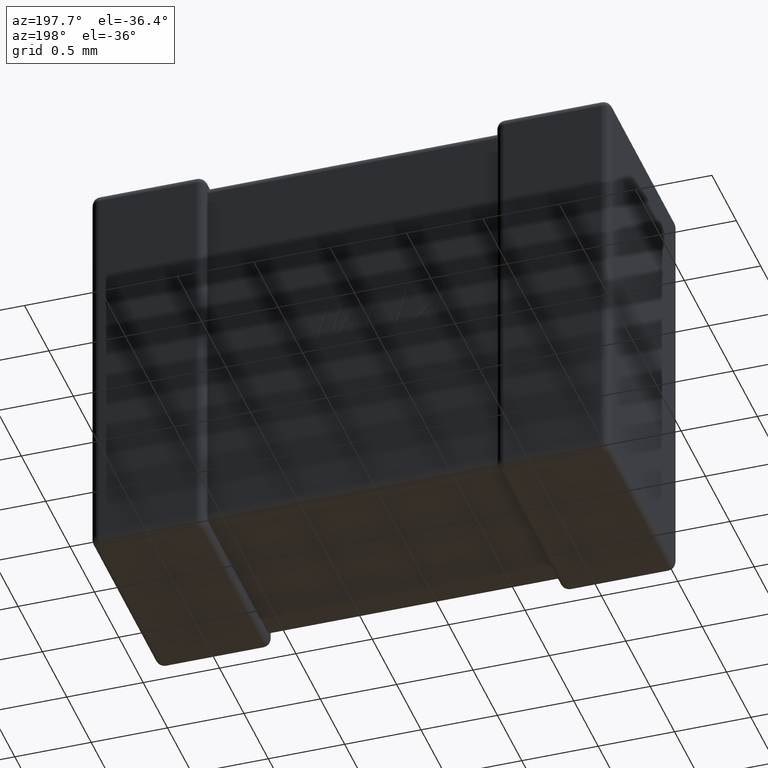
[diagram: clean part render]
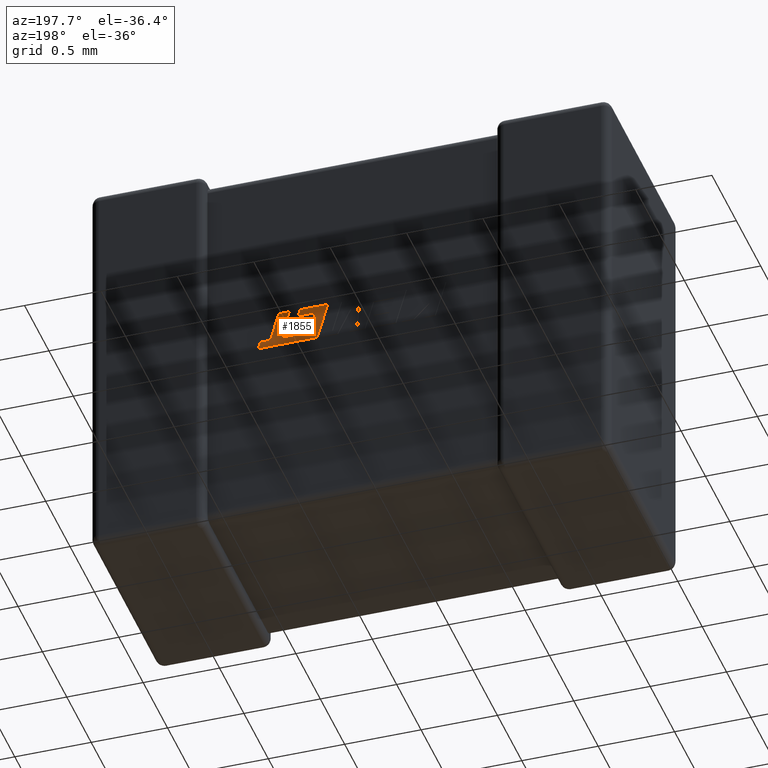
[diagram: same view with one face highlighted and labeled with its STEP entity id]
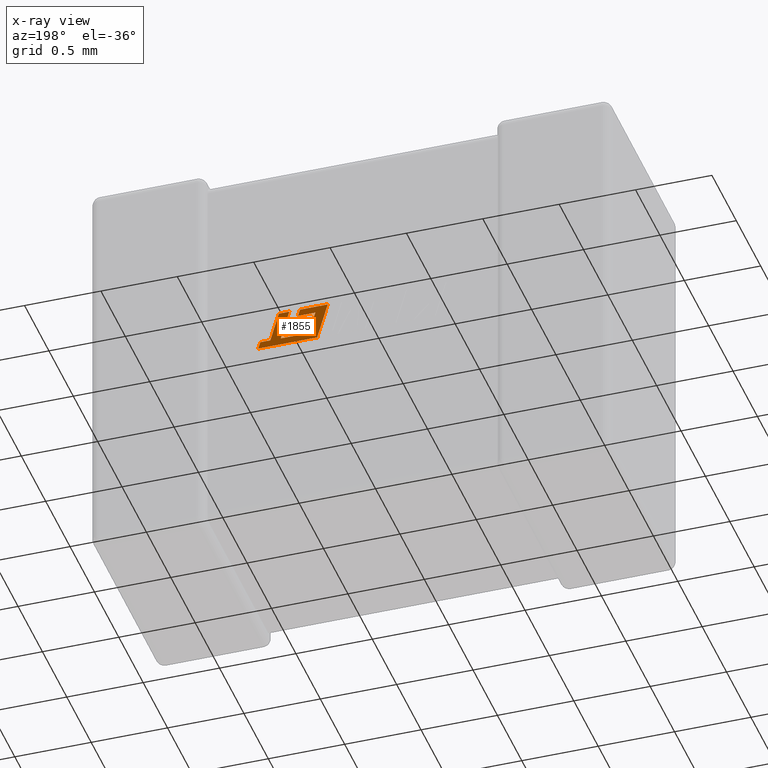
[diagram: x-ray of the same camera — body ghosted, the highlighted face saturated]
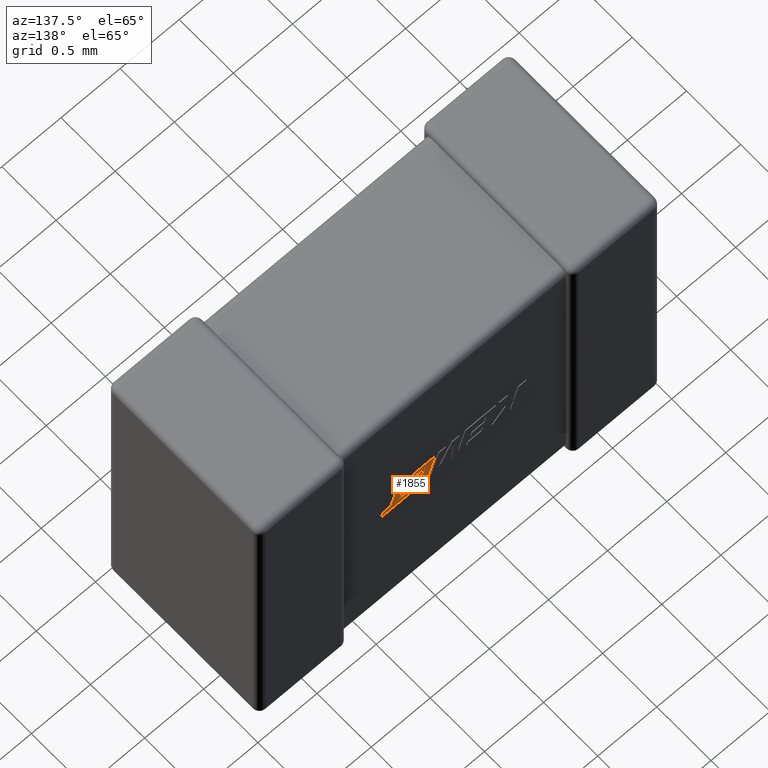
[diagram: same view with one face highlighted and labeled with its STEP entity id]
A machine part, auxiliary view. The second image highlights one B-rep face of the part: STEP entity #1855.
The next image is the same camera in x-ray: the body ghosted, the highlighted face saturated — about 0% of this face is hidden behind the body in this view.
A second angle (auxiliary view) of the same face is appended — the face is thin or edge-on in the first view.
In plain terms, the highlighted planar face has unit normal (0, 1, 0).
Its self-contained STEP definition (entity closure, byte-faithful):
#37 = EDGE_CURVE ( 'NONE', #601, #266, #1840, .T. ) ;
#83 = DIRECTION ( 'NONE',  ( 0.9999960426590095400, 0.0000000000000000000, 0.002813301676023789700 ) ) ;
#84 = ORIENTED_EDGE ( 'NONE', *, *, #4630, .T. ) ;
#96 = ORIENTED_EDGE ( 'NONE', *, *, #424, .T. ) ;
#107 = CARTESIAN_POINT ( 'NONE',  ( 2.316578330123420400, 1.348840000000000300, -1.393777468605939400 ) ) ;
#124 = EDGE_CURVE ( 'NONE', #2843, #3145, #2231, .T. ) ;
#159 = CARTESIAN_POINT ( 'NONE',  ( 1.972396443264239600, 1.348840000000000300, -1.303218073765277400 ) ) ;
#160 = VECTOR ( 'NONE', #2863, 1000.000000000000100 ) ;
#257 = LINE ( 'NONE', #1136, #3970 ) ;
#266 = VERTEX_POINT ( 'NONE', #327 ) ;
#311 = LINE ( 'NONE', #3222, #3905 ) ;
#315 = CARTESIAN_POINT ( 'NONE',  ( 2.055897437653676300, 1.348840000000000300, -1.198954495959714500 ) ) ;
#317 = VECTOR ( 'NONE', #2806, 1000.000000000000000 ) ;
#327 = CARTESIAN_POINT ( 'NONE',  ( 2.095678488951810500, 1.348840000000000300, -1.347660829838406700 ) ) ;
#348 = CARTESIAN_POINT ( 'NONE',  ( 2.113005515929134300, 1.348840000000000300, -1.153170000000000000 ) ) ;
#365 = VERTEX_POINT ( 'NONE', #657 ) ;
#381 = ORIENTED_EDGE ( 'NONE', *, *, #124, .T. ) ;
#424 = EDGE_CURVE ( 'NONE', #643, #2222, #311, .T. ) ;
#431 = LINE ( 'NONE', #315, #2118 ) ;
#551 = CARTESIAN_POINT ( 'NONE',  ( 1.861119823717066300, 1.348840000000000300, -1.153170000000000000 ) ) ;
#601 = VERTEX_POINT ( 'NONE', #2621 ) ;
#643 = VERTEX_POINT ( 'NONE', #551 ) ;
#657 = CARTESIAN_POINT ( 'NONE',  ( 2.316578330123420400, 1.348840000000000300, -1.393777468605939400 ) ) ;
#691 = CARTESIAN_POINT ( 'NONE',  ( 1.959706246931077500, 1.348840000000000300, -1.258746054008583100 ) ) ;
#697 = CARTESIAN_POINT ( 'NONE',  ( 1.930326972112929000, 1.348840000000000300, -1.393777468605939400 ) ) ;
#712 = VECTOR ( 'NONE', #4535, 1000.000000000000100 ) ;
#758 = CARTESIAN_POINT ( 'NONE',  ( 2.062947058999644600, 1.348840000000000300, -1.258746054008583100 ) ) ;
#767 = FACE_OUTER_BOUND ( 'NONE', #2659, .T. ) ;
#778 = CARTESIAN_POINT ( 'NONE',  ( 2.168825992132259000, 1.348840000000000300, -1.347320639518147400 ) ) ;
#842 = LINE ( 'NONE', #691, #317 ) ;
#852 = ORIENTED_EDGE ( 'NONE', *, *, #2709, .T. ) ;
#905 = ORIENTED_EDGE ( 'NONE', *, *, #3706, .T. ) ;
#972 = LINE ( 'NONE', #778, #160 ) ;
#987 = EDGE_CURVE ( 'NONE', #1230, #4004, #842, .T. ) ;
#1041 = VECTOR ( 'NONE', #1461, 1000.000000000000200 ) ;
#1051 = DIRECTION ( 'NONE',  ( 0.0000000000000000000, 0.0000000000000000000, 1.000000000000000000 ) ) ;
#1072 = DIRECTION ( 'NONE',  ( 0.0000000000000000000, 1.000000000000000000, 0.0000000000000000000 ) ) ;
#1097 = CARTESIAN_POINT ( 'NONE',  ( -0.0002255481140239681100, 1.348839999999999800, -0.3440333437732227600 ) ) ;
#1104 = VERTEX_POINT ( 'NONE', #3588 ) ;
#1136 = CARTESIAN_POINT ( 'NONE',  ( 1.942636740367878100, 1.348840000000000300, -1.198954495959714500 ) ) ;
#1215 = ORIENTED_EDGE ( 'NONE', *, *, #4049, .T. ) ;
#1221 = EDGE_CURVE ( 'NONE', #4499, #3796, #2885, .T. ) ;
#1230 = VERTEX_POINT ( 'NONE', #2697 ) ;
#1274 = VECTOR ( 'NONE', #4014, 1000.000000000000100 ) ;
#1288 = VECTOR ( 'NONE', #1969, 1000.000000000000100 ) ;
#1301 = VERTEX_POINT ( 'NONE', #1974 ) ;
#1312 = DIRECTION ( 'NONE',  ( 0.2746918797667152700, 0.0000000000000000000, -0.9615323037684320200 ) ) ;
#1398 = DIRECTION ( 'NONE',  ( -0.2764273280489743500, 0.0000000000000000000, 0.9610348236706641700 ) ) ;
#1409 = LINE ( 'NONE', #4134, #1288 ) ;
#1425 = CARTESIAN_POINT ( 'NONE',  ( 2.095678488951810500, 1.348840000000000300, -1.347660829838406700 ) ) ;
#1461 = DIRECTION ( 'NONE',  ( 0.9999891854650020400, 0.0000000000000000000, 0.004650693823683970900 ) ) ;
#1473 = DIRECTION ( 'NONE',  ( 0.2762437428917282600, 0.0000000000000000000, -0.9610876102172832800 ) ) ;
#1556 = EDGE_CURVE ( 'NONE', #3145, #2433, #3956, .T. ) ;
#1603 = CARTESIAN_POINT ( 'NONE',  ( 2.042905825380899800, 1.348840000000000300, -1.153170000000000000 ) ) ;
#1659 = ORIENTED_EDGE ( 'NONE', *, *, #4450, .T. ) ;
#1671 = LINE ( 'NONE', #3318, #3005 ) ;
#1706 = VECTOR ( 'NONE', #4460, 1000.000000000000000 ) ;
#1788 = EDGE_CURVE ( 'NONE', #2433, #3620, #2322, .T. ) ;
#1806 = DIRECTION ( 'NONE',  ( 1.000000000000000000, 0.0000000000000000000, 0.0000000000000000000 ) ) ;
#1815 = DIRECTION ( 'NONE',  ( 0.2745159998572620500, 0.0000000000000000000, -0.9615825319869156800 ) ) ;
#1827 = ORIENTED_EDGE ( 'NONE', *, *, #1556, .T. ) ;
#1834 = LINE ( 'NONE', #697, #3967 ) ;
#1840 = LINE ( 'NONE', #1864, #2405 ) ;
#1847 = ORIENTED_EDGE ( 'NONE', *, *, #3402, .T. ) ;
#1855 = ADVANCED_FACE ( 'NONE', ( #767 ), #3190, .T. ) ;
#1864 = CARTESIAN_POINT ( 'NONE',  ( 1.985418782404688100, 1.348840000000000300, -1.347971024883181500 ) ) ;
#1872 = EDGE_CURVE ( 'NONE', #266, #1301, #3044, .T. ) ;
#1969 = DIRECTION ( 'NONE',  ( 0.2762033010289140500, 0.0000000000000000000, -0.9610992334305189500 ) ) ;
#1974 = CARTESIAN_POINT ( 'NONE',  ( 2.168825992132259000, 1.348840000000000300, -1.347320639518147400 ) ) ;
#2059 = ORIENTED_EDGE ( 'NONE', *, *, #3657, .T. ) ;
#2118 = VECTOR ( 'NONE', #3229, 1000.000000000000000 ) ;
#2175 = EDGE_CURVE ( 'NONE', #365, #3018, #3325, .T. ) ;
#2222 = VERTEX_POINT ( 'NONE', #1603 ) ;
#2226 = LINE ( 'NONE', #2633, #1274 ) ;
#2231 = LINE ( 'NONE', #3722, #4157 ) ;
#2322 = LINE ( 'NONE', #2739, #712 ) ;
#2333 = CARTESIAN_POINT ( 'NONE',  ( 2.237349833325962500, 1.348840000000000300, -1.347320639517550800 ) ) ;
#2372 = CARTESIAN_POINT ( 'NONE',  ( 2.075651887174539700, 1.348840000000000300, -1.303218073765277400 ) ) ;
#2405 = VECTOR ( 'NONE', #83, 1000.000000000000100 ) ;
#2433 = VERTEX_POINT ( 'NONE', #2333 ) ;
#2474 = CARTESIAN_POINT ( 'NONE',  ( 1.942636740367878100, 1.348840000000000300, -1.198954495959714500 ) ) ;
#2621 = CARTESIAN_POINT ( 'NONE',  ( 1.985418782404688100, 1.348840000000000300, -1.347971024883181500 ) ) ;
#2633 = CARTESIAN_POINT ( 'NONE',  ( 1.972396443264239600, 1.348840000000000300, -1.303218073765277400 ) ) ;
#2659 = EDGE_LOOP ( 'NONE', ( #4221, #2913, #852, #381, #1827, #4422, #1215, #3587, #1659, #96, #905, #84, #3990, #4184, #1847, #4648, #2059 ) ) ;
#2697 = CARTESIAN_POINT ( 'NONE',  ( 1.959706246931077500, 1.348840000000000300, -1.258746054008583100 ) ) ;
#2709 = EDGE_CURVE ( 'NONE', #1301, #2843, #972, .T. ) ;
#2739 = CARTESIAN_POINT ( 'NONE',  ( 2.237349833325962500, 1.348840000000000300, -1.347320639517550800 ) ) ;
#2782 = LINE ( 'NONE', #2946, #3168 ) ;
#2806 = DIRECTION ( 'NONE',  ( 1.000000000000000000, 0.0000000000000000000, 0.0000000000000000000 ) ) ;
#2833 = CARTESIAN_POINT ( 'NONE',  ( 2.075651887174539700, 1.348840000000000300, -1.303218073765277400 ) ) ;
#2843 = VERTEX_POINT ( 'NONE', #348 ) ;
#2863 = DIRECTION ( 'NONE',  ( -0.2763173343569956300, 0.0000000000000000000, 0.9610664548998910700 ) ) ;
#2879 = VECTOR ( 'NONE', #1473, 1000.000000000000000 ) ;
#2885 = LINE ( 'NONE', #2372, #3225 ) ;
#2913 = ORIENTED_EDGE ( 'NONE', *, *, #1872, .T. ) ;
#2946 = CARTESIAN_POINT ( 'NONE',  ( 2.042905825380899800, 1.348840000000000300, -1.153170000000000000 ) ) ;
#3005 = VECTOR ( 'NONE', #1312, 1000.000000000000200 ) ;
#3018 = VERTEX_POINT ( 'NONE', #4496 ) ;
#3023 = DIRECTION ( 'NONE',  ( 1.000000000000000000, 0.0000000000000000000, 0.0000000000000000000 ) ) ;
#3044 = LINE ( 'NONE', #1425, #1041 ) ;
#3145 = VERTEX_POINT ( 'NONE', #4538 ) ;
#3168 = VECTOR ( 'NONE', #3392, 1000.000000000000200 ) ;
#3190 = PLANE ( 'NONE',  #4466 ) ;
#3222 = CARTESIAN_POINT ( 'NONE',  ( 1.861119823717066300, 1.348840000000000300, -1.153170000000000000 ) ) ;
#3225 = VECTOR ( 'NONE', #4113, 1000.000000000000000 ) ;
#3229 = DIRECTION ( 'NONE',  ( -1.000000000000000000, 0.0000000000000000000, 0.0000000000000000000 ) ) ;
#3318 = CARTESIAN_POINT ( 'NONE',  ( 2.062947058999644600, 1.348840000000000300, -1.258746054008583100 ) ) ;
#3325 = LINE ( 'NONE', #107, #1706 ) ;
#3392 = DIRECTION ( 'NONE',  ( 0.2729786930695100000, 0.0000000000000000000, -0.9620200793798756600 ) ) ;
#3402 = EDGE_CURVE ( 'NONE', #4004, #4499, #1671, .T. ) ;
#3587 = ORIENTED_EDGE ( 'NONE', *, *, #2175, .T. ) ;
#3588 = CARTESIAN_POINT ( 'NONE',  ( 2.055897437653676300, 1.348840000000000300, -1.198954495959714500 ) ) ;
#3593 = EDGE_CURVE ( 'NONE', #4479, #1230, #257, .T. ) ;
#3596 = CARTESIAN_POINT ( 'NONE',  ( 2.181545452148865300, 1.348840000000000300, -1.153170000000000000 ) ) ;
#3601 = CARTESIAN_POINT ( 'NONE',  ( 2.303225937787553700, 1.348840000000000300, -1.347315409714319000 ) ) ;
#3620 = VERTEX_POINT ( 'NONE', #3601 ) ;
#3657 = EDGE_CURVE ( 'NONE', #3796, #601, #2226, .T. ) ;
#3706 = EDGE_CURVE ( 'NONE', #2222, #1104, #2782, .T. ) ;
#3722 = CARTESIAN_POINT ( 'NONE',  ( 2.113005515929134300, 1.348840000000000300, -1.153170000000000000 ) ) ;
#3796 = VERTEX_POINT ( 'NONE', #159 ) ;
#3905 = VECTOR ( 'NONE', #1806, 1000.000000000000000 ) ;
#3956 = LINE ( 'NONE', #3596, #2879 ) ;
#3967 = VECTOR ( 'NONE', #1398, 1000.000000000000100 ) ;
#3970 = VECTOR ( 'NONE', #1815, 1000.000000000000100 ) ;
#3990 = ORIENTED_EDGE ( 'NONE', *, *, #3593, .T. ) ;
#4004 = VERTEX_POINT ( 'NONE', #758 ) ;
#4014 = DIRECTION ( 'NONE',  ( 0.2793947940814949200, 0.0000000000000000000, -0.9601763114346025800 ) ) ;
#4049 = EDGE_CURVE ( 'NONE', #3620, #365, #1409, .T. ) ;
#4113 = DIRECTION ( 'NONE',  ( -1.000000000000000000, 0.0000000000000000000, 0.0000000000000000000 ) ) ;
#4134 = CARTESIAN_POINT ( 'NONE',  ( 2.303225937787553700, 1.348840000000000300, -1.347315409714319000 ) ) ;
#4157 = VECTOR ( 'NONE', #3023, 1000.000000000000000 ) ;
#4184 = ORIENTED_EDGE ( 'NONE', *, *, #987, .T. ) ;
#4221 = ORIENTED_EDGE ( 'NONE', *, *, #37, .T. ) ;
#4422 = ORIENTED_EDGE ( 'NONE', *, *, #1788, .T. ) ;
#4450 = EDGE_CURVE ( 'NONE', #3018, #643, #1834, .T. ) ;
#4460 = DIRECTION ( 'NONE',  ( -1.000000000000000000, 0.0000000000000000000, 0.0000000000000000000 ) ) ;
#4466 = AXIS2_PLACEMENT_3D ( 'NONE', #1097, #1072, #1051 ) ;
#4479 = VERTEX_POINT ( 'NONE', #2474 ) ;
#4496 = CARTESIAN_POINT ( 'NONE',  ( 1.930326972112929000, 1.348840000000000300, -1.393777468605939400 ) ) ;
#4499 = VERTEX_POINT ( 'NONE', #2833 ) ;
#4535 = DIRECTION ( 'NONE',  ( 0.9999999968487352000, 0.0000000000000000000, 7.938847109670267000E-005 ) ) ;
#4538 = CARTESIAN_POINT ( 'NONE',  ( 2.181545452148865300, 1.348840000000000300, -1.153170000000000000 ) ) ;
#4630 = EDGE_CURVE ( 'NONE', #1104, #4479, #431, .T. ) ;
#4648 = ORIENTED_EDGE ( 'NONE', *, *, #1221, .T. ) ;